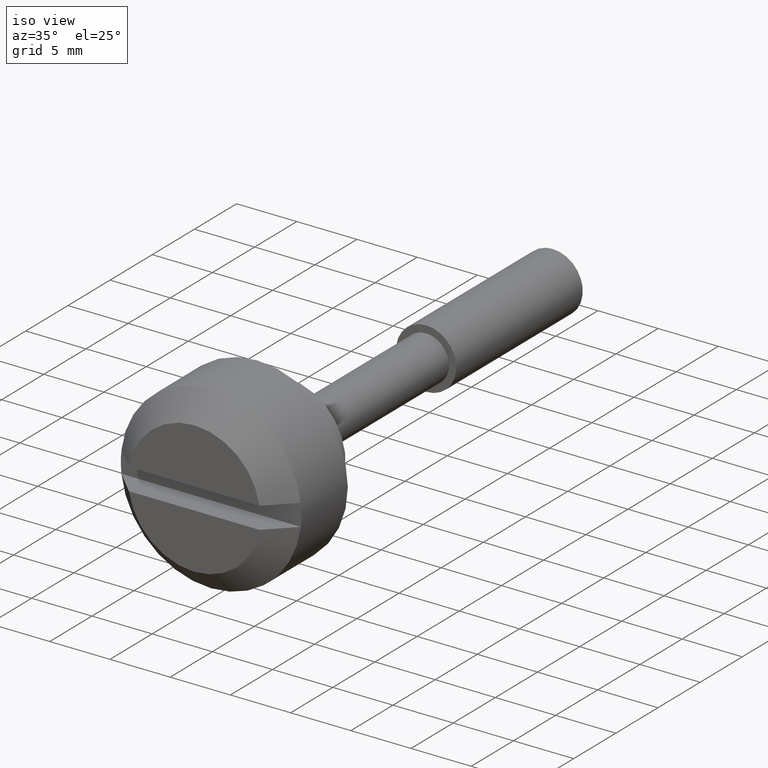
[diagram: clean part render]
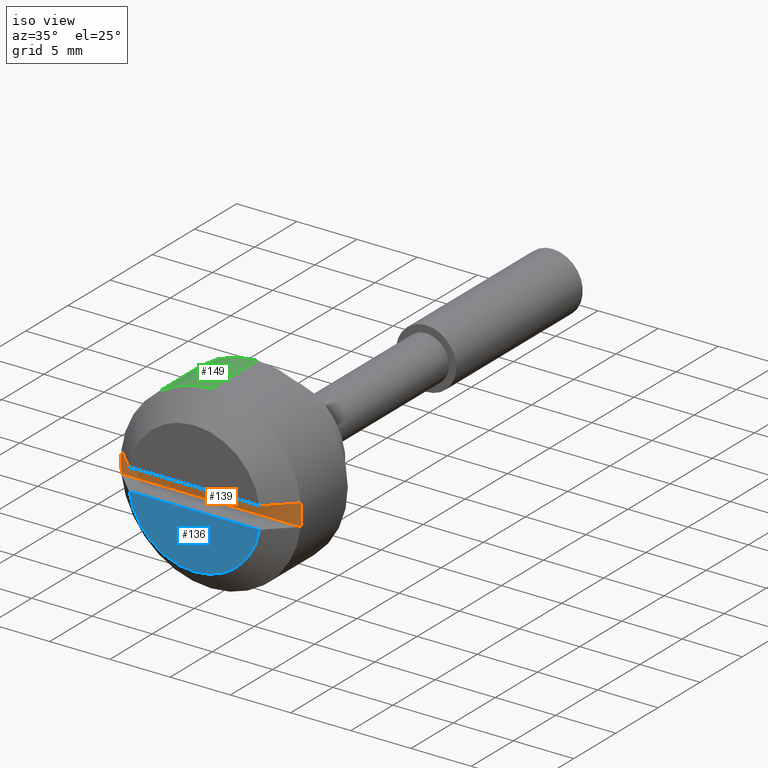
[diagram: same view with three faces highlighted in distinct colors, each labeled with its STEP entity id]
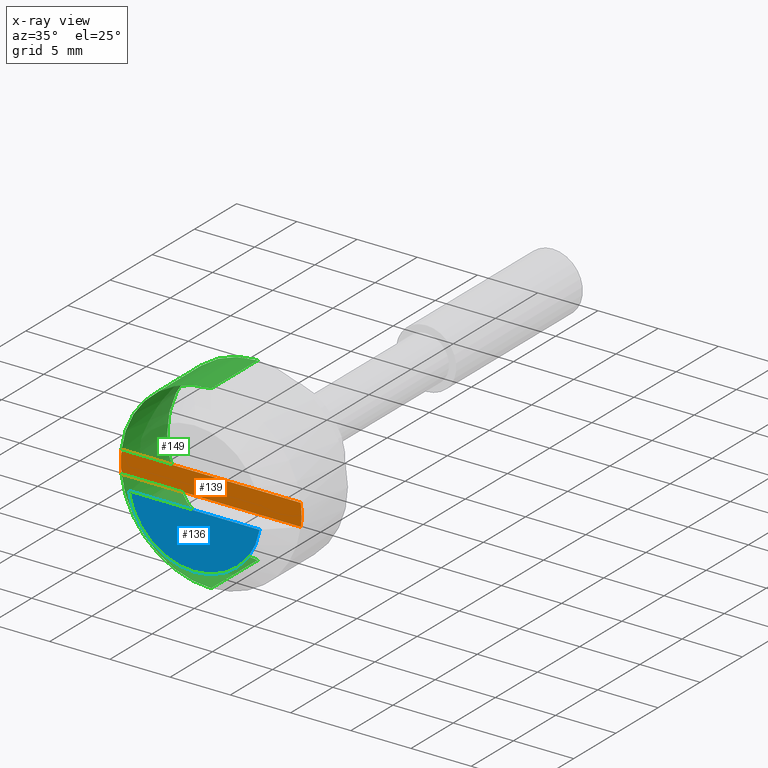
[diagram: x-ray of the same camera — body ghosted, the three highlighted faces saturated]
A machine part, iso view with three faces highlighted in distinct colors.
The next image is the same camera in x-ray (body ghosted, the three faces saturated) — at least one of them is partly hidden behind the body in this view.
Their STEP definitions:

[orange] entity #139 — the highlighted planar face has unit normal (0, -1, 0).
#139=ADVANCED_FACE('',(#430),#429,.T.);
#429=PLANE('',#728);
#430=FACE_OUTER_BOUND('',#729,.T.);
#725=CARTESIAN_POINT('',(-7.99990000000E+00,-9.06550834529E+00,-1.08000000000E+00));
#726=DIRECTION('',(-1.00000000000E+00,0.00000000000E+00,0.00000000000E+00));
#727=DIRECTION('',(0.00000000000E+00,0.00000000000E+00,1.00000000000E+00));
#728=AXIS2_PLACEMENT_3D('',#725,#726,#727);
#729=EDGE_LOOP('',(#963,#964,#965,#966));
#963=ORIENTED_EDGE('',*,*,#1101,.F.);
#964=ORIENTED_EDGE('',*,*,#1102,.F.);
#965=ORIENTED_EDGE('',*,*,#1100,.T.);
#966=ORIENTED_EDGE('',*,*,#1103,.F.);
#1100=EDGE_CURVE('',#1596,#1604,#1623,.T.);
#1101=EDGE_CURVE('',#1629,#1630,#1631,.T.);
#1102=EDGE_CURVE('',#1596,#1629,#1637,.T.);
#1103=EDGE_CURVE('',#1630,#1604,#1643,.T.);
#1596=VERTEX_POINT('',#2069);
#1604=VERTEX_POINT('',#2075);
#1623=LINE('',#2088,#2089);
#1629=VERTEX_POINT('',#2091);
#1630=VERTEX_POINT('',#2092);
#1631=LINE('',#2093,#2094);
#1637=CIRCLE('',#2099,7.50000000000E+00);
#1643=CIRCLE('',#2103,7.50000000000E+00);
#2069=CARTESIAN_POINT('',(-7.99990000000E+00,7.44580418759E+00,-9.00000000000E-01));
#2075=CARTESIAN_POINT('',(-7.99990000000E+00,-7.44580418759E+00,-9.00000000000E-01));
#2088=CARTESIAN_POINT('',(-7.99990000000E+00,7.44580418759E+00,-9.00000000000E-01));
#2089=VECTOR('',#2090,1.48916083752E+01);
#2090=DIRECTION('',(0.00000000000E+00,-1.00000000000E+00,0.00000000000E+00));
#2091=CARTESIAN_POINT('',(-7.99990000000E+00,7.44580418759E+00,9.00000000000E-01));
#2092=CARTESIAN_POINT('',(-7.99990000000E+00,-7.44580418759E+00,9.00000000000E-01));
#2093=CARTESIAN_POINT('',(-7.99990000000E+00,7.44580418759E+00,9.00000000000E-01));
#2094=VECTOR('',#2095,1.48916083752E+01);
#2095=DIRECTION('',(0.00000000000E+00,-1.00000000000E+00,0.00000000000E+00));
#2096=CARTESIAN_POINT('',(-7.99990000000E+00,0.00000000000E+00,0.00000000000E+00));
#2097=DIRECTION('',(1.00000000000E+00,0.00000000000E+00,-0.00000000000E+00));
#2098=DIRECTION('',(-0.00000000000E+00,-0.00000000000E+00,-1.00000000000E+00));
#2099=AXIS2_PLACEMENT_3D('',#2096,#2097,#2098);
#2100=CARTESIAN_POINT('',(-7.99990000000E+00,0.00000000000E+00,0.00000000000E+00));
#2101=DIRECTION('',(1.00000000000E+00,0.00000000000E+00,-0.00000000000E+00));
#2102=DIRECTION('',(-0.00000000000E+00,-0.00000000000E+00,-1.00000000000E+00));
#2103=AXIS2_PLACEMENT_3D('',#2100,#2101,#2102);

[blue] entity #136 — the highlighted planar face has unit normal (0, 1, 0).
#136=ADVANCED_FACE('',(#400),#399,.F.);
#399=PLANE('',#707);
#400=FACE_OUTER_BOUND('',#708,.T.);
#704=CARTESIAN_POINT('',(-9.99990000000E+00,-6.51103678380E+00,-5.96000000000E+00));
#705=DIRECTION('',(1.00000000000E+00,0.00000000000E+00,0.00000000000E+00));
#706=DIRECTION('',(0.00000000000E+00,1.00000000000E+00,0.00000000000E+00));
#707=AXIS2_PLACEMENT_3D('',#704,#705,#706);
#708=EDGE_LOOP('',(#952,#953));
#952=ORIENTED_EDGE('',*,*,#1094,.T.);
#953=ORIENTED_EDGE('',*,*,#1095,.F.);
#1094=EDGE_CURVE('',#1582,#1583,#1584,.T.);
#1095=EDGE_CURVE('',#1582,#1583,#1590,.T.);
#1582=VERTEX_POINT('',#2060);
#1583=VERTEX_POINT('',#2061);
#1584=CIRCLE('',#2065,5.50000000000E+00);
#1590=LINE('',#2066,#2067);
#2060=CARTESIAN_POINT('',(-9.99990000000E+00,5.42586398650E+00,-9.00000000000E-01));
#2061=CARTESIAN_POINT('',(-9.99990000000E+00,-5.42586398650E+00,-9.00000000000E-01));
#2062=CARTESIAN_POINT('',(-9.99990000000E+00,0.00000000000E+00,0.00000000000E+00));
#2063=DIRECTION('',(-1.00000000000E+00,0.00000000000E+00,0.00000000000E+00));
#2064=DIRECTION('',(-0.00000000000E+00,9.86520724818E-01,-1.63636363636E-01));
#2065=AXIS2_PLACEMENT_3D('',#2062,#2063,#2064);
#2066=CARTESIAN_POINT('',(-9.99990000000E+00,5.42586398650E+00,-9.00000000000E-01));
#2067=VECTOR('',#2068,1.08517279730E+01);
#2068=DIRECTION('',(0.00000000000E+00,-1.00000000000E+00,0.00000000000E+00));

[green] entity #149 — the highlighted cylindrical surface (partial cylindrical patch) has radius 7.5 mm, axis along (0, -1, -0).
#149=ADVANCED_FACE('',(#530),#529,.T.);
#529=CYLINDRICAL_SURFACE('',#796,7.50000000000E+00);
#530=FACE_OUTER_BOUND('',#797,.T.);
#793=CARTESIAN_POINT('',(-1.00200000000E+03,0.00000000000E+00,0.00000000000E+00));
#794=DIRECTION('',(-1.00000000000E+00,-0.00000000000E+00,-0.00000000000E+00));
#795=DIRECTION('',(0.00000000000E+00,1.45473230946E-15,-1.00000000000E+00));
#796=AXIS2_PLACEMENT_3D('',#793,#794,#795);
#797=EDGE_LOOP('',(#1006,#1007,#1008,#1009,#1010,#1011));
#1006=ORIENTED_EDGE('',*,*,#1108,.T.);
#1007=ORIENTED_EDGE('',*,*,#1116,.T.);
#1008=ORIENTED_EDGE('',*,*,#1096,.F.);
#1009=ORIENTED_EDGE('',*,*,#1102,.T.);
#1010=ORIENTED_EDGE('',*,*,#1107,.F.);
#1011=ORIENTED_EDGE('',*,*,#1117,.F.);
#1096=EDGE_CURVE('',#1596,#1597,#1598,.T.);
#1102=EDGE_CURVE('',#1596,#1629,#1637,.T.);
#1107=EDGE_CURVE('',#1661,#1629,#1668,.T.);
#1108=EDGE_CURVE('',#1674,#1675,#1676,.T.);
#1116=EDGE_CURVE('',#1675,#1597,#1724,.T.);
#1117=EDGE_CURVE('',#1674,#1661,#1730,.T.);
#1596=VERTEX_POINT('',#2069);
#1597=VERTEX_POINT('',#2070);
#1598=CIRCLE('',#2074,7.50000000000E+00);
#1629=VERTEX_POINT('',#2091);
#1637=CIRCLE('',#2099,7.50000000000E+00);
#1661=VERTEX_POINT('',#2112);
#1668=CIRCLE('',#2120,7.50000000000E+00);
#1674=VERTEX_POINT('',#2121);
#1675=VERTEX_POINT('',#2122);
#1676=CIRCLE('',#2126,7.50000000000E+00);
#1724=(BOUNDED_CURVE() B_SPLINE_CURVE(1,(#2143,#2144),.UNSPECIFIED.,.F.,.F.) B_SPLINE_CURVE_WITH_KNOTS((2,2),(8.33333283663E-02,9.16666668285E-01),.UNSPECIFIED.) CURVE() GEOMETRIC_REPRESENTATION_ITEM() RATIONAL_B_SPLINE_CURVE((1.00000000000E+00,1.00000000000E+00)) REPRESENTATION_ITEM('') );
#1730=(BOUNDED_CURVE() B_SPLINE_CURVE(1,(#2145,#2146),.UNSPECIFIED.,.F.,.F.) B_SPLINE_CURVE_WITH_KNOTS((2,2),(8.33333333333E-02,9.16666666666E-01),.UNSPECIFIED.) CURVE() GEOMETRIC_REPRESENTATION_ITEM() RATIONAL_B_SPLINE_CURVE((7.50000000000E-01,7.50000000000E-01)) REPRESENTATION_ITEM('') );
#2069=CARTESIAN_POINT('',(-7.99990000000E+00,7.44580418759E+00,-9.00000000000E-01));
#2070=CARTESIAN_POINT('',(-7.99990000000E+00,3.78811229071E-10,-7.50000000000E+00));
#2071=CARTESIAN_POINT('',(-7.99990000000E+00,0.00000000000E+00,0.00000000000E+00));
#2072=DIRECTION('',(-1.00000000000E+00,0.00000000000E+00,0.00000000000E+00));
#2073=DIRECTION('',(-0.00000000000E+00,9.92773891679E-01,-1.20000000000E-01));
#2074=AXIS2_PLACEMENT_3D('',#2071,#2072,#2073);
#2091=CARTESIAN_POINT('',(-7.99990000000E+00,7.44580418759E+00,9.00000000000E-01));
#2096=CARTESIAN_POINT('',(-7.99990000000E+00,0.00000000000E+00,0.00000000000E+00));
#2097=DIRECTION('',(1.00000000000E+00,0.00000000000E+00,-0.00000000000E+00));
#2098=DIRECTION('',(-0.00000000000E+00,-0.00000000000E+00,-1.00000000000E+00));
#2099=AXIS2_PLACEMENT_3D('',#2096,#2097,#2098);
#2112=CARTESIAN_POINT('',(-7.99990000000E+00,1.86247740040E-06,7.50000000000E+00));
#2117=CARTESIAN_POINT('',(-7.99990000000E+00,0.00000000000E+00,0.00000000000E+00));
#2118=DIRECTION('',(-1.00000000000E+00,0.00000000000E+00,0.00000000000E+00));
#2119=DIRECTION('',(-0.00000000000E+00,-0.00000000000E+00,-1.00000000000E+00));
#2120=AXIS2_PLACEMENT_3D('',#2117,#2118,#2119);
#2121=CARTESIAN_POINT('',(-2.50000000000E+00,1.77635683940E-15,7.50000000000E+00));
#2122=CARTESIAN_POINT('',(-2.50000000000E+00,0.00000000000E+00,-7.50000000000E+00));
#2123=CARTESIAN_POINT('',(-2.50000000000E+00,0.00000000000E+00,0.00000000000E+00));
#2124=DIRECTION('',(-1.00000000000E+00,0.00000000000E+00,-0.00000000000E+00));
#2125=DIRECTION('',(0.00000000000E+00,-1.22460635382E-16,-1.00000000000E+00));
#2126=AXIS2_PLACEMENT_3D('',#2123,#2124,#2125);
#2143=CARTESIAN_POINT('',(-2.49999996722E+00,1.09104923210E-14,-7.50000000000E+00));
#2144=CARTESIAN_POINT('',(-7.99990001068E+00,1.09104923210E-14,-7.50000000000E+00));
#2145=CARTESIAN_POINT('',(-2.50000000000E+00,-1.06581410364E-14,7.50000000000E+00));
#2146=CARTESIAN_POINT('',(-7.99990000000E+00,-1.06581410364E-14,7.50000000000E+00));